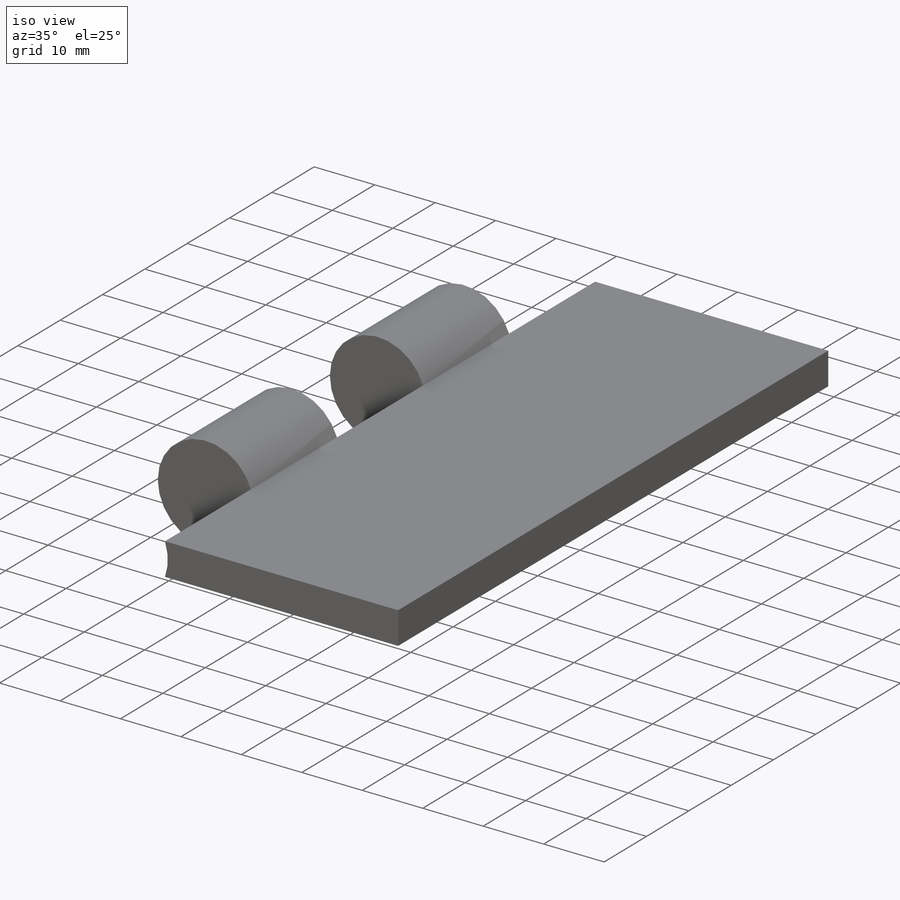
[diagram: iso view]
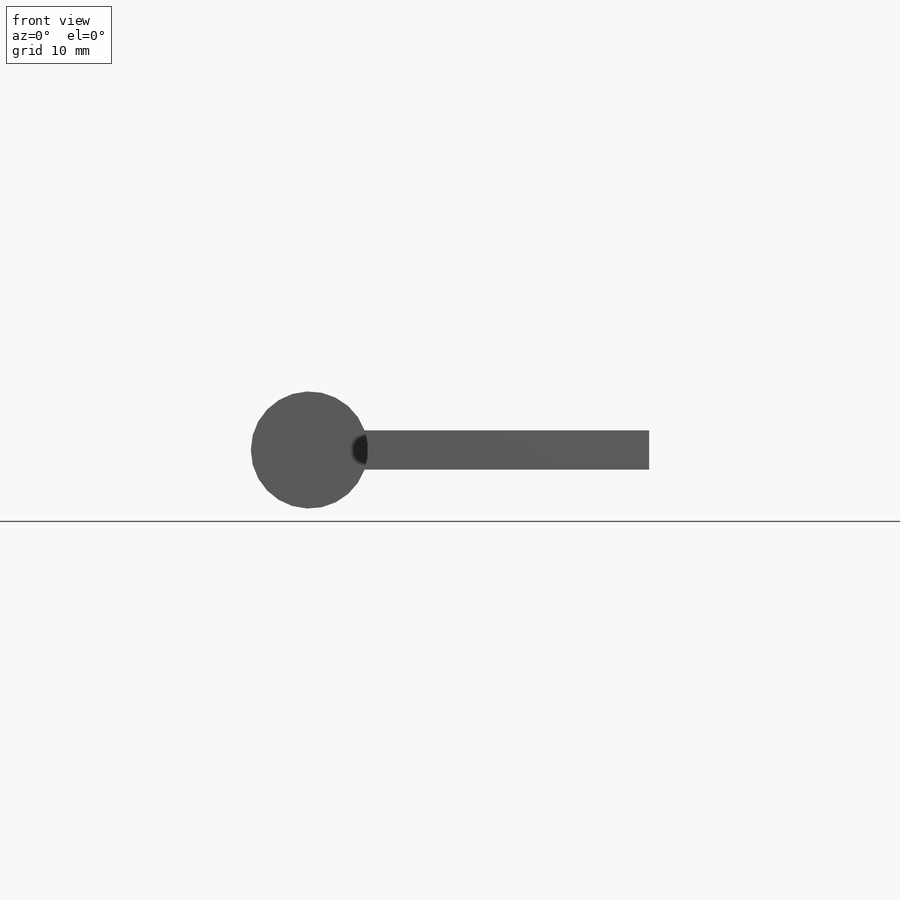
[diagram: front view]
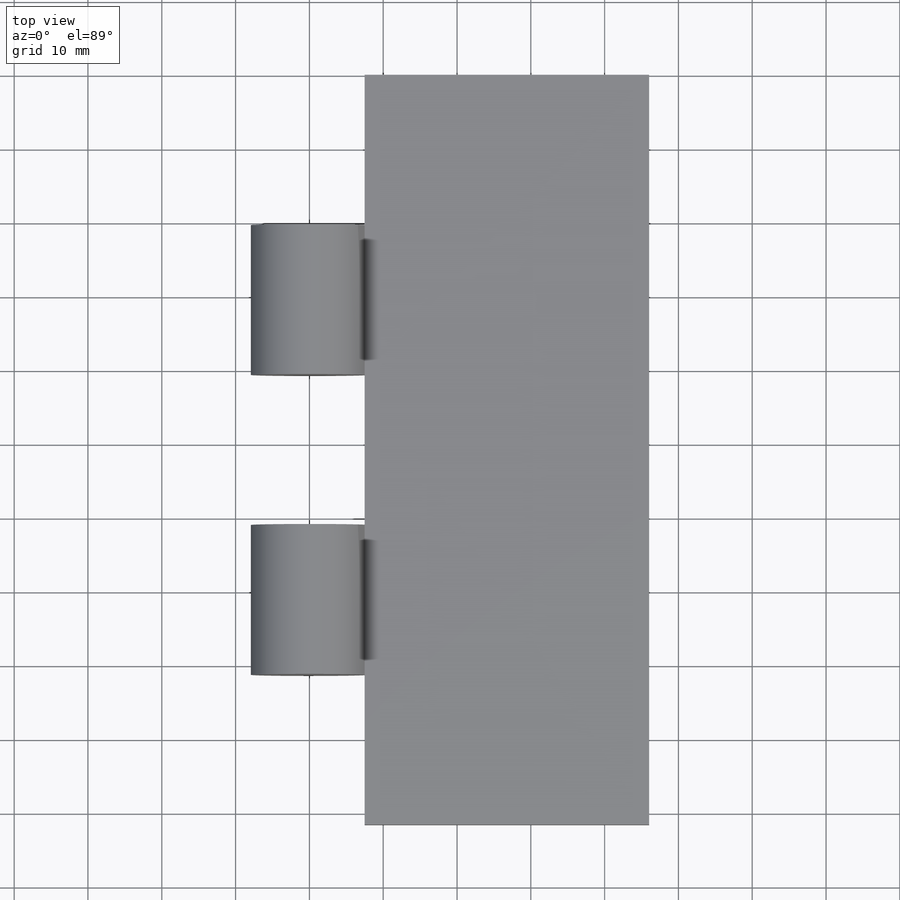
[diagram: top view]
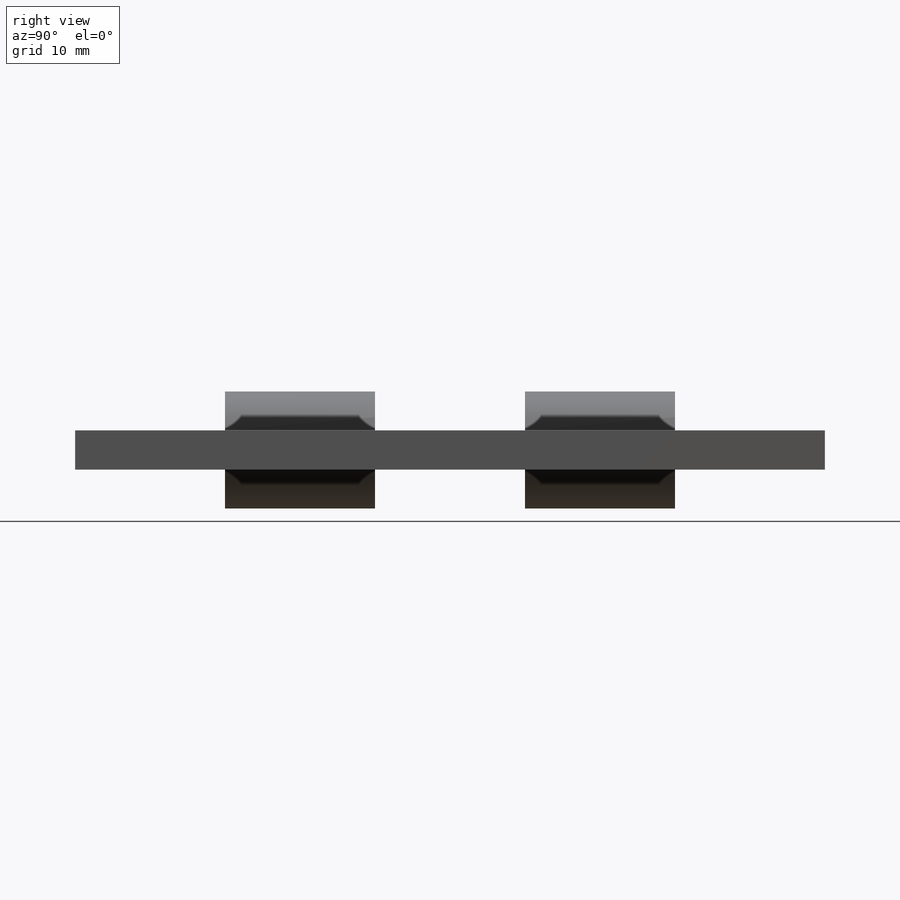
[diagram: right view]
SOLIDWORKS PART (.sldprt)
format: sldprt  version: not decoded by parser v0  size: 269,824 bytes
history: native  units: mm
features: sketch x6, cut_extrude x5, material x1, extrude x1 (+11 scaffold rows collapsed)
feature tree (24):
  scaffold x11  (default folders/planes/origin — collapsed)
  material  "Nickel"
  sketch  "Sketch1"  dims[D3=15.875mm D1=5.334mm D2=38.1mm]
  extrude  "Boss-Extrude1"  Depth=101.6mm
  cut_extrude  "Cut-Extrude1"  [1 undecoded]
  sketch  "Sketch1<3>"  dims[D1=20.32mm]
  cut_extrude  "Cut-Extrude2"  [1 undecoded]
  sketch  "Sketch1<5>"  dims[D1=20.32mm D19=60.96mm]
  cut_extrude  "Cut-Extrude3"  [1 undecoded]
  sketch  "Sketch1<6>"  dims[D1=20.32mm D19=81.28mm]
  cut_extrude  "Cut-Extrude4"  [1 undecoded]
  sketch  "Sketch1<7>"  dims[D1=20.32mm D19=40.64mm]
  cut_extrude  "Cut-Extrude5"  [1 undecoded]
  sketch  "Sketch1<8>"  dims[D1=20.32mm D19=60.96mm]
decode coverage: 7 of 12 modeling features carry decoded parameters
note: 5 parameter values undecoded
summary: no parameter record found for 5 features
note: suppression state not decoded; provenance and decode notes live in map.json
